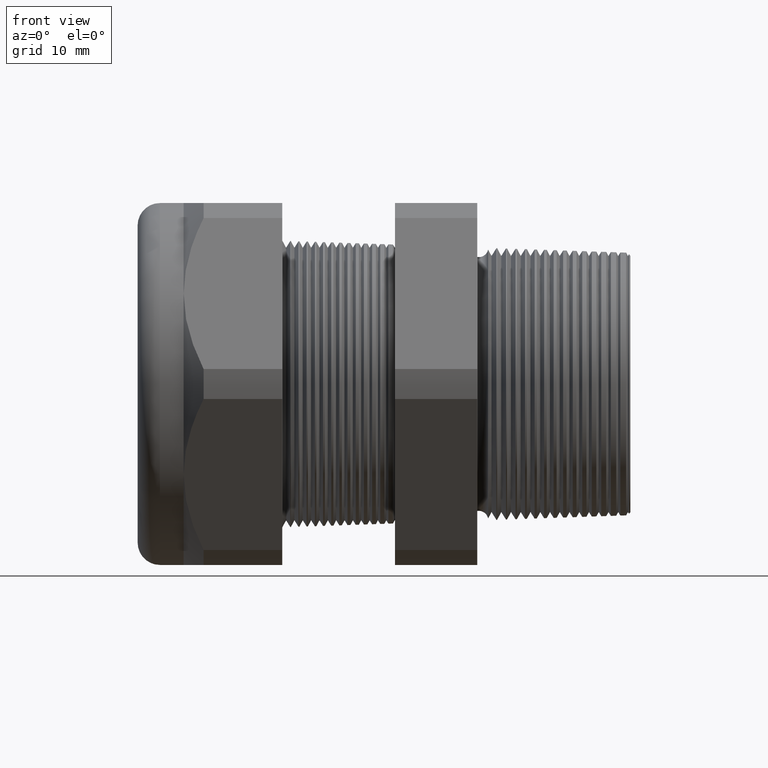
[diagram: clean part render]
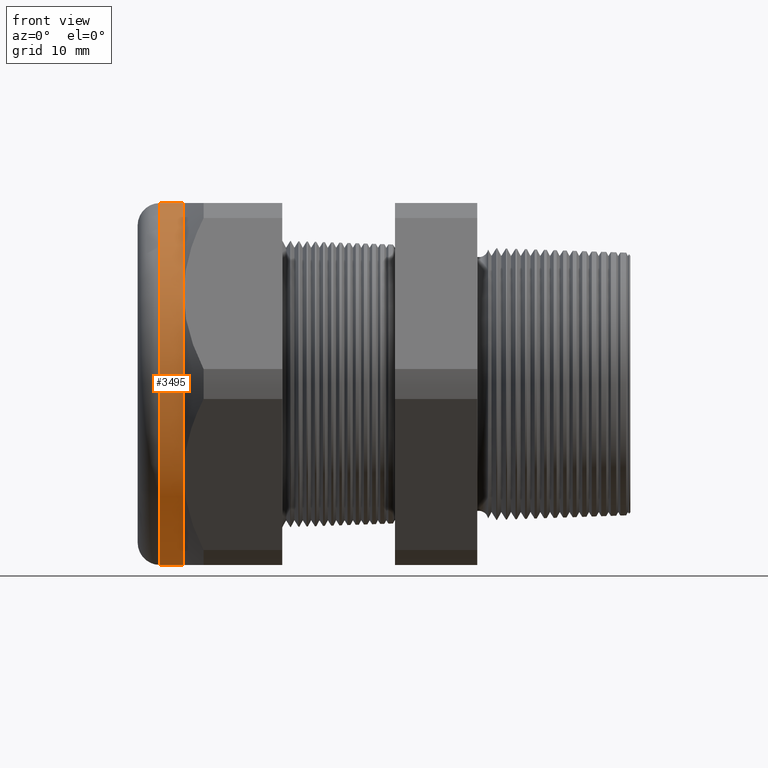
[diagram: same view with one face highlighted and labeled with its STEP entity id]
A machine part, front view. The second image highlights one B-rep face of the part: STEP entity #3495.
In plain terms, the highlighted cylindrical surface (partial cylindrical patch) has radius 16.51 mm, axis along (1, 0, 0).
Its self-contained STEP definition (entity closure, byte-faithful):
#156 = EDGE_CURVE ( 'NONE', #5942, #5820, #1670, .T. ) ;
#157 = ORIENTED_EDGE ( 'NONE', *, *, #156, .F. ) ;
#159 = EDGE_CURVE ( 'NONE', #5820, #5822, #1658, .T. ) ;
#160 = ORIENTED_EDGE ( 'NONE', *, *, #159, .F. ) ;
#162 = EDGE_CURVE ( 'NONE', #5822, #6004, #1652, .T. ) ;
#167 = ORIENTED_EDGE ( 'NONE', *, *, #162, .F. ) ;
#168 = ORIENTED_EDGE ( 'NONE', *, *, #6006, .T. ) ;
#1295 = ORIENTED_EDGE ( 'NONE', *, *, #1336, .T. ) ;
#1332 = ORIENTED_EDGE ( 'NONE', *, *, #5959, .F. ) ;
#1335 = EDGE_LOOP ( 'NONE', ( #1332, #1295, #168, #167, #160, #157 ) ) ;
#1336 = EDGE_CURVE ( 'NONE', #3423, #3427, #3949, .T. ) ;
#1648 = DIRECTION ( 'NONE',  ( 0.0000000000000000000, 0.0000000000000000000, -1.000000000000000000 ) ) ;
#1649 = DIRECTION ( 'NONE',  ( 1.000000000000000000, 0.0000000000000000000, 0.0000000000000000000 ) ) ;
#1650 = CARTESIAN_POINT ( 'NONE',  ( -1.364645669291338200, 0.0000000000000000000, 0.0000000000000000000 ) ) ;
#1651 = AXIS2_PLACEMENT_3D ( 'NONE', #1650, #1649, #1648 ) ;
#1652 = CIRCLE ( 'NONE', #1651, 0.6499999999999999100 ) ;
#1654 = DIRECTION ( 'NONE',  ( 0.0000000000000000000, 0.0000000000000000000, -1.000000000000000000 ) ) ;
#1655 = DIRECTION ( 'NONE',  ( 1.000000000000000000, 0.0000000000000000000, 0.0000000000000000000 ) ) ;
#1656 = CARTESIAN_POINT ( 'NONE',  ( -1.364645669291338200, 0.0000000000000000000, 0.0000000000000000000 ) ) ;
#1657 = AXIS2_PLACEMENT_3D ( 'NONE', #1656, #1655, #1654 ) ;
#1658 = CIRCLE ( 'NONE', #1657, 0.6499999999999999100 ) ;
#1666 = DIRECTION ( 'NONE',  ( 0.0000000000000000000, 0.0000000000000000000, -1.000000000000000000 ) ) ;
#1667 = DIRECTION ( 'NONE',  ( 1.000000000000000000, 0.0000000000000000000, 0.0000000000000000000 ) ) ;
#1668 = CARTESIAN_POINT ( 'NONE',  ( -1.364645669291338200, 0.0000000000000000000, 0.0000000000000000000 ) ) ;
#1669 = AXIS2_PLACEMENT_3D ( 'NONE', #1668, #1667, #1666 ) ;
#1670 = CIRCLE ( 'NONE', #1669, 0.6499999999999999100 ) ;
#3423 = VERTEX_POINT ( 'NONE', #3954 ) ;
#3427 = VERTEX_POINT ( 'NONE', #4017 ) ;
#3495 = ADVANCED_FACE ( 'NONE', ( #4086 ), #4085, .T. ) ;
#3945 = DIRECTION ( 'NONE',  ( 0.0000000000000000000, 0.0000000000000000000, 1.000000000000000000 ) ) ;
#3946 = DIRECTION ( 'NONE',  ( 1.000000000000000000, 0.0000000000000000000, 0.0000000000000000000 ) ) ;
#3947 = CARTESIAN_POINT ( 'NONE',  ( -1.449999999999999700, 0.0000000000000000000, 0.0000000000000000000 ) ) ;
#3948 = AXIS2_PLACEMENT_3D ( 'NONE', #3947, #3946, #3945 ) ;
#3949 = CIRCLE ( 'NONE', #3948, 0.6499999999999999100 ) ;
#3954 = CARTESIAN_POINT ( 'NONE',  ( -1.449999999999999700, 7.960204194457794200E-017, 0.6499999999999999100 ) ) ;
#4017 = CARTESIAN_POINT ( 'NONE',  ( -1.449999999999999700, 0.0000000000000000000, -0.6499999999999999100 ) ) ;
#4083 = CARTESIAN_POINT ( 'NONE',  ( 0.0000000000000000000, 0.0000000000000000000, 0.0000000000000000000 ) ) ;
#4084 = AXIS2_PLACEMENT_3D ( 'NONE', #4083, #4144, #4143 ) ;
#4085 = CYLINDRICAL_SURFACE ( 'NONE', #4084, 0.6499999999999999100 ) ;
#4086 = FACE_OUTER_BOUND ( 'NONE', #1335, .T. ) ;
#4143 = DIRECTION ( 'NONE',  ( 0.0000000000000000000, 0.0000000000000000000, -1.000000000000000000 ) ) ;
#4144 = DIRECTION ( 'NONE',  ( 1.000000000000000000, 0.0000000000000000000, 0.0000000000000000000 ) ) ;
#4650 = CARTESIAN_POINT ( 'NONE',  ( -1.364645669291338500, -0.5629165124598851700, -0.3250000000000001800 ) ) ;
#4651 = CARTESIAN_POINT ( 'NONE',  ( -1.364645669291338500, -0.5629165124598853900, 0.3249999999999997300 ) ) ;
#4918 = CARTESIAN_POINT ( 'NONE',  ( -1.364645669291338500, 0.0000000000000000000, 0.6499999999999999100 ) ) ;
#4935 = DIRECTION ( 'NONE',  ( 1.000000000000000000, 0.0000000000000000000, 0.0000000000000000000 ) ) ;
#4936 = VECTOR ( 'NONE', #4935, 39.37007874015748100 ) ;
#4937 = CARTESIAN_POINT ( 'NONE',  ( 0.0000000000000000000, 7.960204194457794200E-017, 0.6499999999999999100 ) ) ;
#4938 = LINE ( 'NONE', #4937, #4936 ) ;
#5036 = DIRECTION ( 'NONE',  ( 1.000000000000000000, 0.0000000000000000000, 0.0000000000000000000 ) ) ;
#5037 = VECTOR ( 'NONE', #5036, 39.37007874015748100 ) ;
#5038 = CARTESIAN_POINT ( 'NONE',  ( 0.0000000000000000000, 0.0000000000000000000, -0.6499999999999999100 ) ) ;
#5039 = LINE ( 'NONE', #5038, #5037 ) ;
#5040 = CARTESIAN_POINT ( 'NONE',  ( -1.364645669291338500, 0.0000000000000000000, -0.6500000000000001300 ) ) ;
#5820 = VERTEX_POINT ( 'NONE', #4651 ) ;
#5822 = VERTEX_POINT ( 'NONE', #4650 ) ;
#5942 = VERTEX_POINT ( 'NONE', #4918 ) ;
#5959 = EDGE_CURVE ( 'NONE', #3423, #5942, #4938, .T. ) ;
#6004 = VERTEX_POINT ( 'NONE', #5040 ) ;
#6006 = EDGE_CURVE ( 'NONE', #3427, #6004, #5039, .T. ) ;